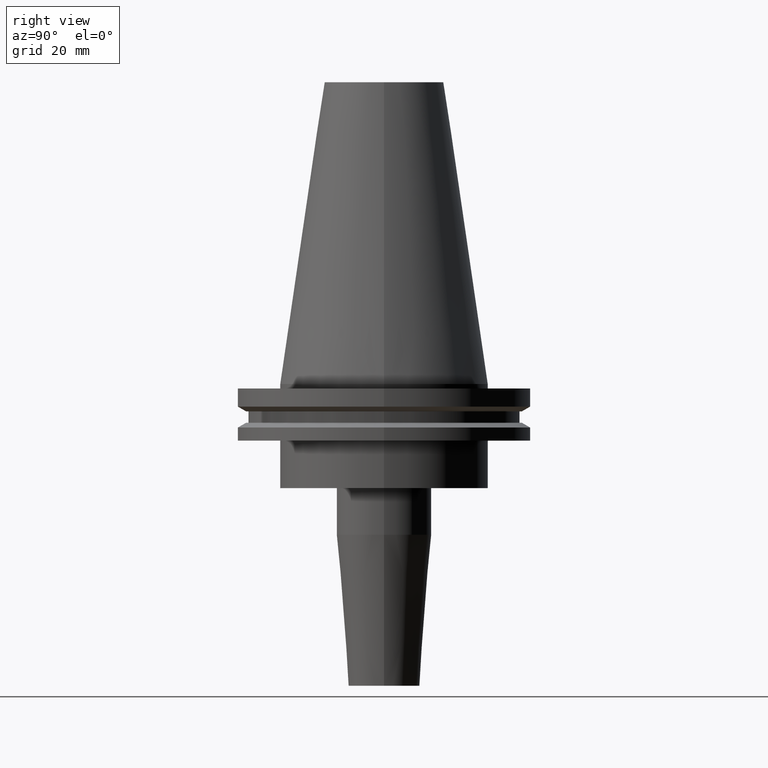
[diagram: clean part render]
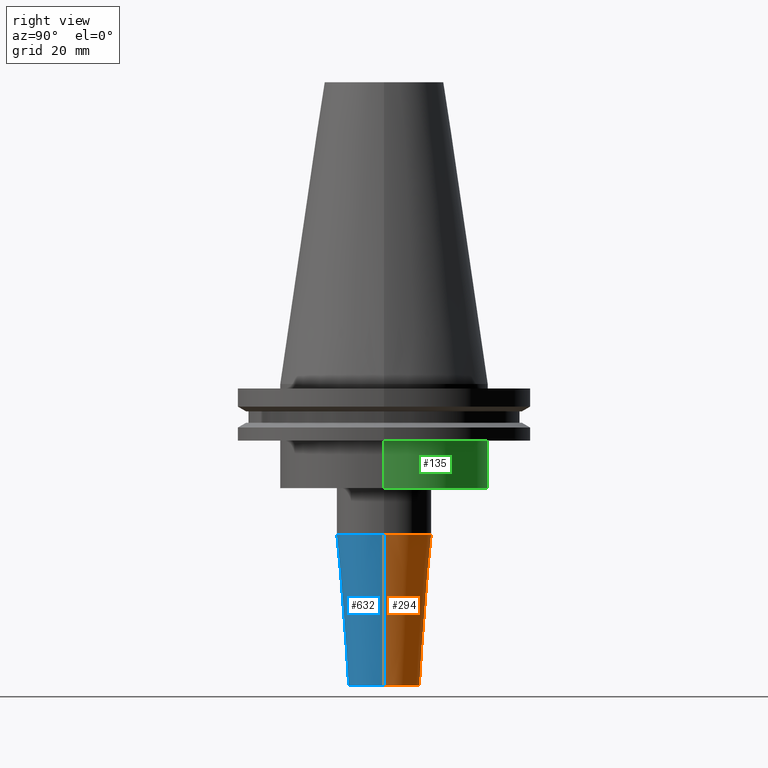
[diagram: same view with three faces highlighted in distinct colors, each labeled with its STEP entity id]
A machine part, right view with three faces highlighted in distinct colors.
Their STEP definitions:

[orange] entity #294 — the highlighted conical surface has half-angle 4.5 deg.
#21 = DIRECTION ( 'NONE',  ( 1.000000000000000000, 0.000000000000000000, 0.000000000000000000 ) ) ;
#22 = DIRECTION ( 'NONE',  ( -0.07845909572783765773, 9.608468044709215241E-18, 0.9969173337331286300 ) ) ;
#32 = DIRECTION ( 'NONE',  ( -0.000000000000000000, -0.000000000000000000, 1.000000000000000000 ) ) ;
#43 = CIRCLE ( 'NONE', #608, 12.00000000000000000 ) ;
#68 = ORIENTED_EDGE ( 'NONE', *, *, #184, .F. ) ;
#75 = AXIS2_PLACEMENT_3D ( 'NONE', #702, #679, #690 ) ;
#146 = CONICAL_SURFACE ( 'NONE', #75, 12.00000000000000000, 0.07853981633973752818 ) ;
#163 = LINE ( 'NONE', #356, #169 ) ;
#169 = VECTOR ( 'NONE', #22, 999.9999999999998863 ) ;
#184 = EDGE_CURVE ( 'NONE', #648, #519, #268, .T. ) ;
#204 = DIRECTION ( 'NONE',  ( 0.07845909572783765773, 0.000000000000000000, 0.9969173337331286300 ) ) ;
#223 = VERTEX_POINT ( 'NONE', #503 ) ;
#225 = CARTESIAN_POINT ( 'NONE',  ( 16.00000000000000000, 0.000000000000000000, -50.77518105529640735 ) ) ;
#262 = CIRCLE ( 'NONE', #375, 16.00000000000000000 ) ;
#268 = LINE ( 'NONE', #792, #795 ) ;
#294 = ADVANCED_FACE ( 'NONE', ( #485 ), #146, .T. ) ;
#356 = CARTESIAN_POINT ( 'NONE',  ( -12.00000000000000000, 1.469576158976823947E-15, -101.5999999999999943 ) ) ;
#375 = AXIS2_PLACEMENT_3D ( 'NONE', #412, #32, #817 ) ;
#412 = CARTESIAN_POINT ( 'NONE',  ( 0.000000000000000000, 0.000000000000000000, -50.77518105529640735 ) ) ;
#437 = EDGE_CURVE ( 'NONE', #648, #223, #43, .T. ) ;
#485 = FACE_OUTER_BOUND ( 'NONE', #684, .T. ) ;
#503 = CARTESIAN_POINT ( 'NONE',  ( -12.00000000000000000, 1.714505518806294638E-15, -101.5999999999999943 ) ) ;
#519 = VERTEX_POINT ( 'NONE', #225 ) ;
#522 = ORIENTED_EDGE ( 'NONE', *, *, #437, .T. ) ;
#551 = VERTEX_POINT ( 'NONE', #850 ) ;
#608 = AXIS2_PLACEMENT_3D ( 'NONE', #747, #676, #21 ) ;
#648 = VERTEX_POINT ( 'NONE', #784 ) ;
#667 = ORIENTED_EDGE ( 'NONE', *, *, #691, .T. ) ;
#676 = DIRECTION ( 'NONE',  ( -0.000000000000000000, -0.000000000000000000, 1.000000000000000000 ) ) ;
#679 = DIRECTION ( 'NONE',  ( -0.000000000000000000, -0.000000000000000000, 1.000000000000000000 ) ) ;
#684 = EDGE_LOOP ( 'NONE', ( #522, #667, #765, #68 ) ) ;
#690 = DIRECTION ( 'NONE',  ( 1.000000000000000000, 0.000000000000000000, 0.000000000000000000 ) ) ;
#691 = EDGE_CURVE ( 'NONE', #223, #551, #163, .T. ) ;
#702 = CARTESIAN_POINT ( 'NONE',  ( 0.000000000000000000, 0.000000000000000000, -101.5999999999999943 ) ) ;
#747 = CARTESIAN_POINT ( 'NONE',  ( 0.000000000000000000, 0.000000000000000000, -101.5999999999999943 ) ) ;
#765 = ORIENTED_EDGE ( 'NONE', *, *, #766, .F. ) ;
#766 = EDGE_CURVE ( 'NONE', #519, #551, #262, .T. ) ;
#784 = CARTESIAN_POINT ( 'NONE',  ( 12.00000000000000000, 0.000000000000000000, -101.5999999999999943 ) ) ;
#792 = CARTESIAN_POINT ( 'NONE',  ( 12.00000000000000000, 0.000000000000000000, -101.5999999999999943 ) ) ;
#795 = VECTOR ( 'NONE', #204, 999.9999999999998863 ) ;
#817 = DIRECTION ( 'NONE',  ( 1.000000000000000000, 0.000000000000000000, 0.000000000000000000 ) ) ;
#850 = CARTESIAN_POINT ( 'NONE',  ( -16.00000000000000000, 1.959434878635765131E-15, -50.77518105529640735 ) ) ;

[blue] entity #632 — the highlighted conical surface has half-angle 4.5 deg.
#22 = DIRECTION ( 'NONE',  ( -0.07845909572783765773, 9.608468044709215241E-18, 0.9969173337331286300 ) ) ;
#24 = CARTESIAN_POINT ( 'NONE',  ( 0.000000000000000000, 0.000000000000000000, -50.77518105529640735 ) ) ;
#96 = ORIENTED_EDGE ( 'NONE', *, *, #511, .T. ) ;
#163 = LINE ( 'NONE', #356, #169 ) ;
#169 = VECTOR ( 'NONE', #22, 999.9999999999998863 ) ;
#184 = EDGE_CURVE ( 'NONE', #648, #519, #268, .T. ) ;
#185 = ORIENTED_EDGE ( 'NONE', *, *, #691, .F. ) ;
#204 = DIRECTION ( 'NONE',  ( 0.07845909572783765773, 0.000000000000000000, 0.9969173337331286300 ) ) ;
#212 = DIRECTION ( 'NONE',  ( -0.000000000000000000, -0.000000000000000000, 1.000000000000000000 ) ) ;
#223 = VERTEX_POINT ( 'NONE', #503 ) ;
#225 = CARTESIAN_POINT ( 'NONE',  ( 16.00000000000000000, 0.000000000000000000, -50.77518105529640735 ) ) ;
#242 = AXIS2_PLACEMENT_3D ( 'NONE', #349, #295, #620 ) ;
#254 = DIRECTION ( 'NONE',  ( 1.000000000000000000, 0.000000000000000000, 0.000000000000000000 ) ) ;
#261 = CIRCLE ( 'NONE', #742, 16.00000000000000000 ) ;
#268 = LINE ( 'NONE', #792, #795 ) ;
#295 = DIRECTION ( 'NONE',  ( -0.000000000000000000, -0.000000000000000000, 1.000000000000000000 ) ) ;
#303 = DIRECTION ( 'NONE',  ( -0.000000000000000000, -0.000000000000000000, 1.000000000000000000 ) ) ;
#310 = CIRCLE ( 'NONE', #242, 12.00000000000000000 ) ;
#349 = CARTESIAN_POINT ( 'NONE',  ( 0.000000000000000000, 0.000000000000000000, -101.5999999999999943 ) ) ;
#352 = EDGE_CURVE ( 'NONE', #551, #519, #261, .T. ) ;
#356 = CARTESIAN_POINT ( 'NONE',  ( -12.00000000000000000, 1.469576158976823947E-15, -101.5999999999999943 ) ) ;
#430 = CONICAL_SURFACE ( 'NONE', #652, 12.00000000000000000, 0.07853981633973752818 ) ;
#503 = CARTESIAN_POINT ( 'NONE',  ( -12.00000000000000000, 1.714505518806294638E-15, -101.5999999999999943 ) ) ;
#511 = EDGE_CURVE ( 'NONE', #223, #648, #310, .T. ) ;
#519 = VERTEX_POINT ( 'NONE', #225 ) ;
#551 = VERTEX_POINT ( 'NONE', #850 ) ;
#569 = ORIENTED_EDGE ( 'NONE', *, *, #184, .T. ) ;
#591 = DIRECTION ( 'NONE',  ( 1.000000000000000000, 0.000000000000000000, 0.000000000000000000 ) ) ;
#596 = EDGE_LOOP ( 'NONE', ( #185, #96, #569, #737 ) ) ;
#610 = CARTESIAN_POINT ( 'NONE',  ( 0.000000000000000000, 0.000000000000000000, -101.5999999999999943 ) ) ;
#620 = DIRECTION ( 'NONE',  ( 1.000000000000000000, 0.000000000000000000, 0.000000000000000000 ) ) ;
#632 = ADVANCED_FACE ( 'NONE', ( #722 ), #430, .T. ) ;
#648 = VERTEX_POINT ( 'NONE', #784 ) ;
#652 = AXIS2_PLACEMENT_3D ( 'NONE', #610, #212, #591 ) ;
#691 = EDGE_CURVE ( 'NONE', #223, #551, #163, .T. ) ;
#722 = FACE_OUTER_BOUND ( 'NONE', #596, .T. ) ;
#737 = ORIENTED_EDGE ( 'NONE', *, *, #352, .F. ) ;
#742 = AXIS2_PLACEMENT_3D ( 'NONE', #24, #303, #254 ) ;
#784 = CARTESIAN_POINT ( 'NONE',  ( 12.00000000000000000, 0.000000000000000000, -101.5999999999999943 ) ) ;
#792 = CARTESIAN_POINT ( 'NONE',  ( 12.00000000000000000, 0.000000000000000000, -101.5999999999999943 ) ) ;
#795 = VECTOR ( 'NONE', #204, 999.9999999999998863 ) ;
#850 = CARTESIAN_POINT ( 'NONE',  ( -16.00000000000000000, 1.959434878635765131E-15, -50.77518105529640735 ) ) ;

[green] entity #135 — the highlighted cylindrical surface (partial cylindrical patch) has radius 34.925 mm, axis along (-0, -0, 1).
#8 = LINE ( 'NONE', #396, #208 ) ;
#36 = DIRECTION ( 'NONE',  ( 1.000000000000000000, 0.000000000000000000, 0.000000000000000000 ) ) ;
#54 = ORIENTED_EDGE ( 'NONE', *, *, #623, .F. ) ;
#55 = VERTEX_POINT ( 'NONE', #470 ) ;
#60 = DIRECTION ( 'NONE',  ( -0.000000000000000000, -0.000000000000000000, 1.000000000000000000 ) ) ;
#67 = DIRECTION ( 'NONE',  ( 1.000000000000000000, 0.000000000000000000, 0.000000000000000000 ) ) ;
#99 = DIRECTION ( 'NONE',  ( 1.000000000000000000, 0.000000000000000000, 0.000000000000000000 ) ) ;
#135 = ADVANCED_FACE ( 'NONE', ( #726 ), #796, .T. ) ;
#188 = CIRCLE ( 'NONE', #283, 34.92499999999999716 ) ;
#196 = DIRECTION ( 'NONE',  ( -0.000000000000000000, -0.000000000000000000, 1.000000000000000000 ) ) ;
#205 = VERTEX_POINT ( 'NONE', #228 ) ;
#208 = VECTOR ( 'NONE', #196, 1000.000000000000000 ) ;
#228 = CARTESIAN_POINT ( 'NONE',  ( 34.92499999999999716, 0.000000000000000000, -35.04999999999999716 ) ) ;
#283 = AXIS2_PLACEMENT_3D ( 'NONE', #290, #614, #36 ) ;
#288 = VERTEX_POINT ( 'NONE', #418 ) ;
#290 = CARTESIAN_POINT ( 'NONE',  ( 0.000000000000000000, 0.000000000000000000, -19.04999999999999716 ) ) ;
#307 = AXIS2_PLACEMENT_3D ( 'NONE', #407, #60, #67 ) ;
#348 = ORIENTED_EDGE ( 'NONE', *, *, #471, .T. ) ;
#370 = EDGE_LOOP ( 'NONE', ( #472, #348, #820, #54 ) ) ;
#396 = CARTESIAN_POINT ( 'NONE',  ( 34.92499999999999716, 0.000000000000000000, 101.5999999999999943 ) ) ;
#407 = CARTESIAN_POINT ( 'NONE',  ( 0.000000000000000000, 0.000000000000000000, 101.5999999999999943 ) ) ;
#410 = CARTESIAN_POINT ( 'NONE',  ( -34.92499999999999716, 4.277078946022130887E-15, 101.5999999999999943 ) ) ;
#418 = CARTESIAN_POINT ( 'NONE',  ( 34.92499999999999716, 0.000000000000000000, -19.04999999999999716 ) ) ;
#470 = CARTESIAN_POINT ( 'NONE',  ( -34.92499999999999716, 4.277078946022130887E-15, -19.04999999999999716 ) ) ;
#471 = EDGE_CURVE ( 'NONE', #781, #55, #560, .T. ) ;
#472 = ORIENTED_EDGE ( 'NONE', *, *, #779, .T. ) ;
#548 = CARTESIAN_POINT ( 'NONE',  ( 0.000000000000000000, 0.000000000000000000, -35.04999999999999716 ) ) ;
#560 = LINE ( 'NONE', #410, #809 ) ;
#614 = DIRECTION ( 'NONE',  ( -0.000000000000000000, -0.000000000000000000, 1.000000000000000000 ) ) ;
#619 = CIRCLE ( 'NONE', #833, 34.92499999999999716 ) ;
#623 = EDGE_CURVE ( 'NONE', #205, #288, #8, .T. ) ;
#629 = CARTESIAN_POINT ( 'NONE',  ( -34.92499999999999716, 4.277078946022130887E-15, -35.04999999999999716 ) ) ;
#688 = DIRECTION ( 'NONE',  ( -0.000000000000000000, -0.000000000000000000, 1.000000000000000000 ) ) ;
#726 = FACE_OUTER_BOUND ( 'NONE', #370, .T. ) ;
#738 = DIRECTION ( 'NONE',  ( -0.000000000000000000, -0.000000000000000000, 1.000000000000000000 ) ) ;
#779 = EDGE_CURVE ( 'NONE', #205, #781, #619, .T. ) ;
#781 = VERTEX_POINT ( 'NONE', #629 ) ;
#796 = CYLINDRICAL_SURFACE ( 'NONE', #307, 34.92499999999999716 ) ;
#809 = VECTOR ( 'NONE', #738, 1000.000000000000000 ) ;
#820 = ORIENTED_EDGE ( 'NONE', *, *, #829, .F. ) ;
#829 = EDGE_CURVE ( 'NONE', #288, #55, #188, .T. ) ;
#833 = AXIS2_PLACEMENT_3D ( 'NONE', #548, #688, #99 ) ;